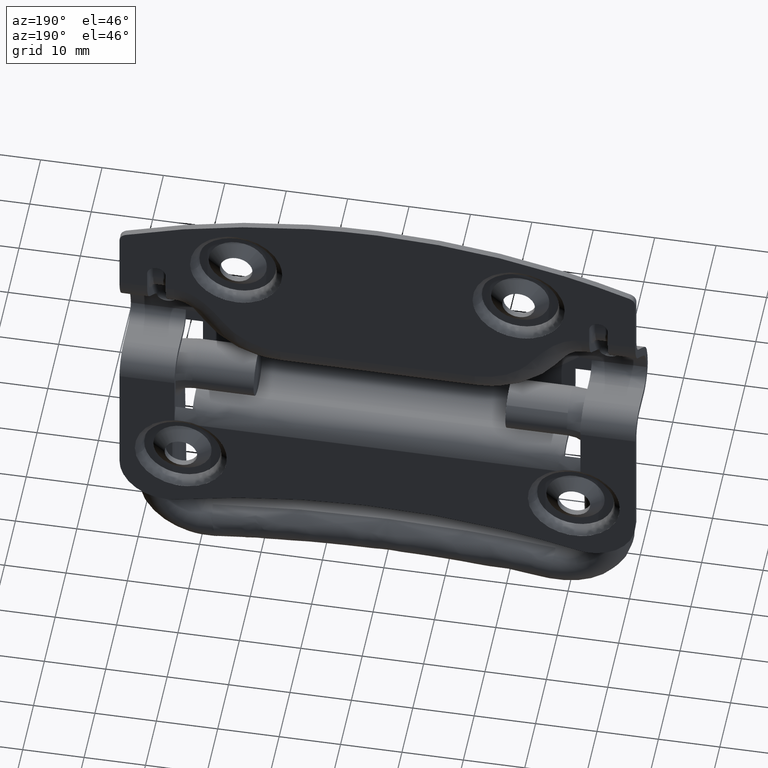
[diagram: clean part render]
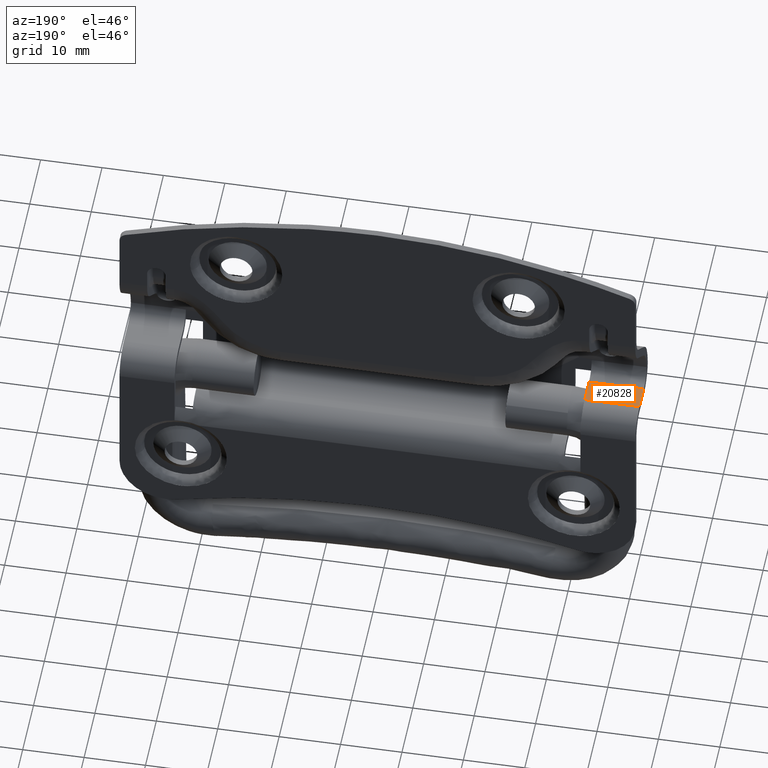
[diagram: same view with one face highlighted and labeled with its STEP entity id]
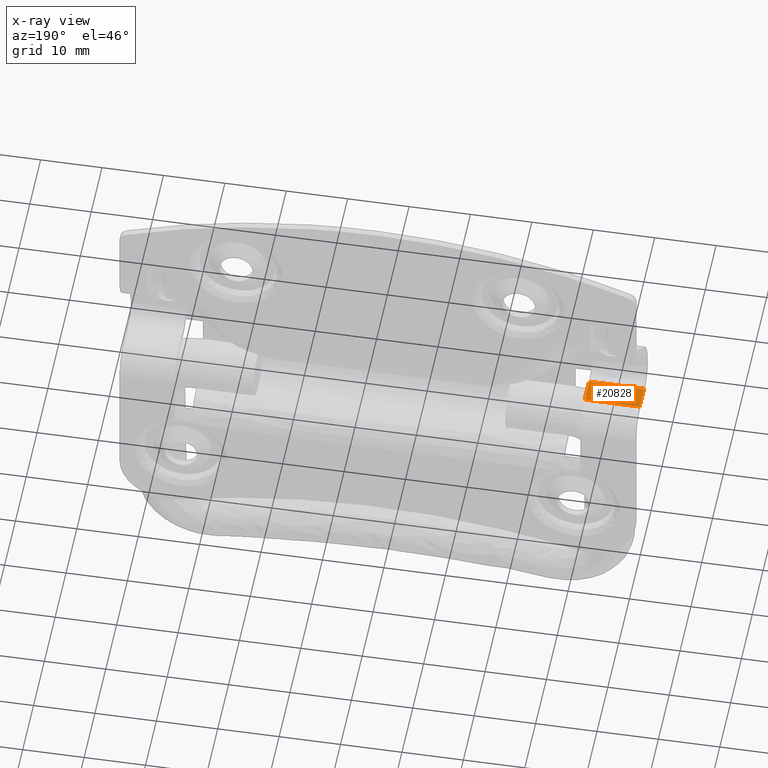
[diagram: x-ray of the same camera — body ghosted, the highlighted face saturated]
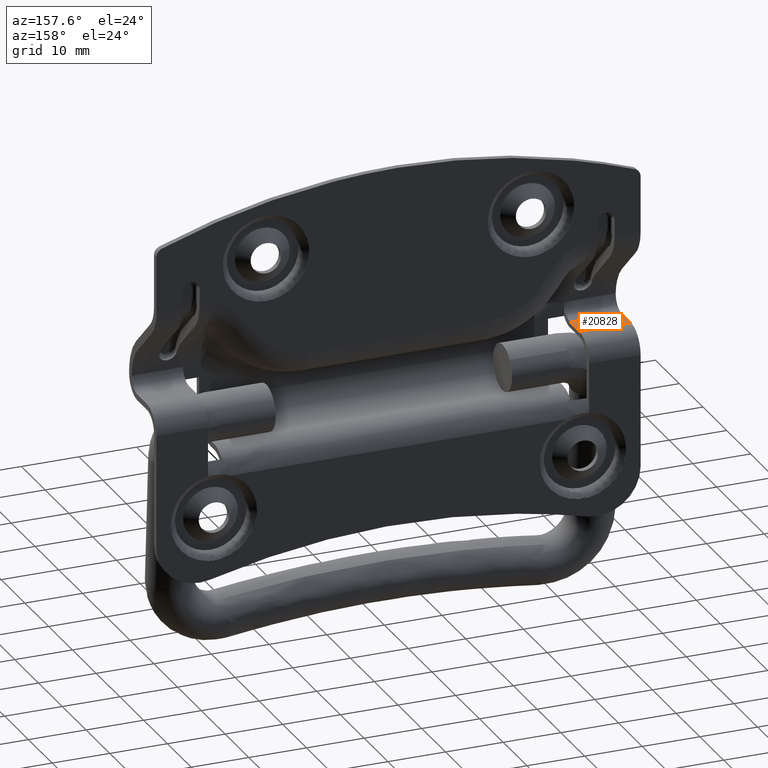
[diagram: same view with one face highlighted and labeled with its STEP entity id]
A machine part, auxiliary view. The second image highlights one B-rep face of the part: STEP entity #20828.
The next image is the same camera in x-ray: the body ghosted, the highlighted face saturated — about 0% of this face is hidden behind the body in this view.
A second angle (auxiliary view) of the same face is appended — the face is thin or edge-on in the first view.
In plain terms, the highlighted face is a freeform B-spline surface patch.
Its self-contained STEP definition (entity closure, byte-faithful):
#20753=CARTESIAN_POINT('',(-33.049893012754652,-2.064099999999910,5.0));
#20754=VERTEX_POINT('',#20753);
#20766=CARTESIAN_POINT('',(-41.999893012754548,-2.064099999999910,4.999999999999690));
#20767=VERTEX_POINT('',#20766);
#20768=CARTESIAN_POINT('',(-33.049893012754652,-2.064099999999910,5.0));
#20769=CARTESIAN_POINT('',(-41.999893012754548,-2.064099999999910,4.999999999999690));
#20770=QUASI_UNIFORM_CURVE('',1,(#20768,#20769),.UNSPECIFIED.,.F.,.U.);
#20771=EDGE_CURVE('',#20754,#20767,#20770,.T.);
#20801=CARTESIAN_POINT('',(-32.602839857971922,2.135699992247313,4.999999999999690));
#20802=CARTESIAN_POINT('',(-42.446945767441100,2.135699992247313,4.999999999999690));
#20803=CARTESIAN_POINT('',(-32.602839857971922,-2.263900099535495,4.999999999999690));
#20804=CARTESIAN_POINT('',(-42.446945767441100,-2.263900099535495,4.999999999999690));
#20805=B_SPLINE_SURFACE_WITH_KNOTS('',1,1,((#20801,#20803),(#20802,#20804)),.UNSPECIFIED.,.F.,.F.,.U.,(2,2),(2,2),(0.0,9.844105909469178),(0.0,4.399600091782808),.UNSPECIFIED.);
#20806=CARTESIAN_POINT('',(-41.999893012754548,1.935900000000090,4.999999999999690));
#20807=VERTEX_POINT('',#20806);
#20808=CARTESIAN_POINT('',(-41.999893012754548,1.935900000000090,4.999999999999690));
#20809=CARTESIAN_POINT('',(-41.999893012754548,-2.064099999999910,4.999999999999690));
#20810=QUASI_UNIFORM_CURVE('',1,(#20808,#20809),.UNSPECIFIED.,.F.,.U.);
#20811=EDGE_CURVE('',#20807,#20767,#20810,.T.);
#20812=ORIENTED_EDGE('',*,*,#20811,.T.);
#20813=ORIENTED_EDGE('',*,*,#20771,.F.);
#20814=CARTESIAN_POINT('',(-33.049893012754652,1.935900000000090,4.999999999999690));
#20815=VERTEX_POINT('',#20814);
#20816=CARTESIAN_POINT('',(-33.049893012754652,-2.064099999999910,5.0));
#20817=CARTESIAN_POINT('',(-33.049893012754652,1.935900000000090,4.999999999999690));
#20818=QUASI_UNIFORM_CURVE('',1,(#20816,#20817),.UNSPECIFIED.,.F.,.U.);
#20819=EDGE_CURVE('',#20754,#20815,#20818,.T.);
#20820=ORIENTED_EDGE('',*,*,#20819,.T.);
#20821=CARTESIAN_POINT('',(-33.049893012754652,1.935900000000090,4.999999999999690));
#20822=CARTESIAN_POINT('',(-41.999893012754548,1.935900000000090,4.999999999999690));
#20823=QUASI_UNIFORM_CURVE('',1,(#20821,#20822),.UNSPECIFIED.,.F.,.U.);
#20824=EDGE_CURVE('',#20815,#20807,#20823,.T.);
#20825=ORIENTED_EDGE('',*,*,#20824,.T.);
#20826=EDGE_LOOP('',(#20812,#20813,#20820,#20825));
#20827=FACE_OUTER_BOUND('',#20826,.T.);
#20828=ADVANCED_FACE('',(#20827),#20805,.T.);